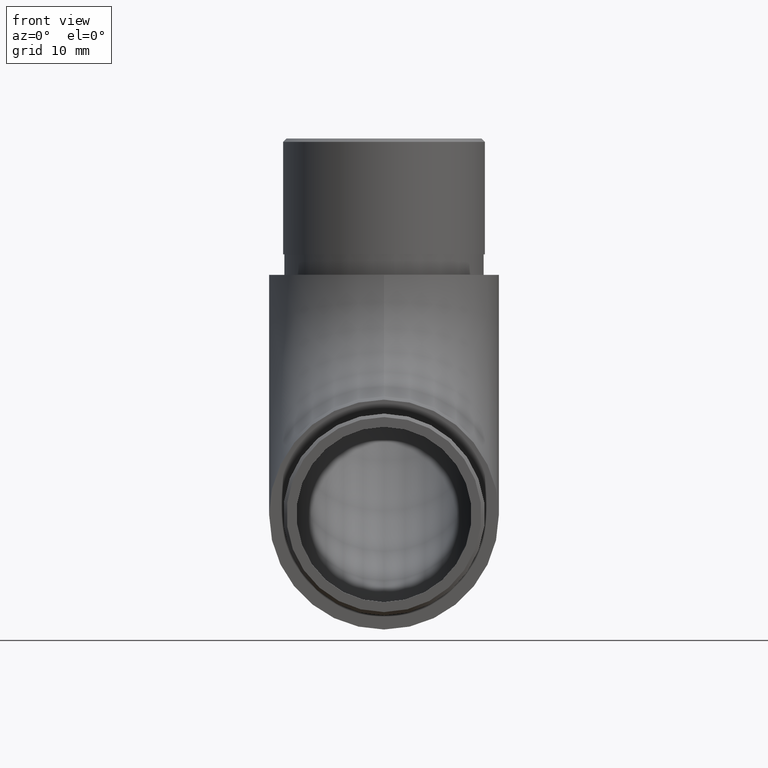
[diagram: clean part render]
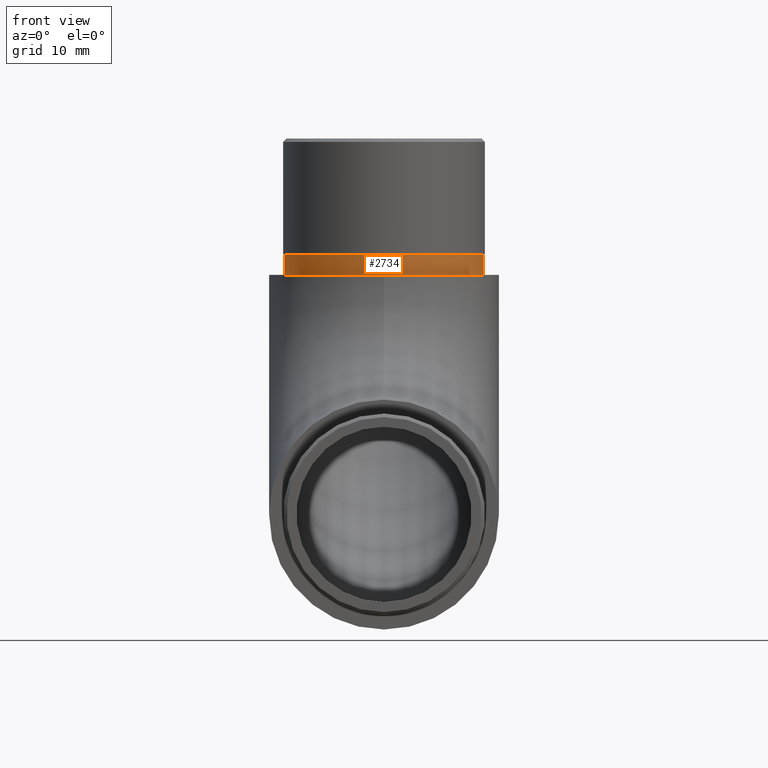
[diagram: same view with one face highlighted and labeled with its STEP entity id]
A machine part, front view. The second image highlights one B-rep face of the part: STEP entity #2734.
In plain terms, the highlighted cylindrical surface (bore or boss wall) has radius 14.6 mm, axis along (-0, -0, -1).
Its self-contained STEP definition (entity closure, byte-faithful):
#990 = DIRECTION ( 'NONE',  ( 0.0000000000000000000, 0.0000000000000000000, 1.000000000000000000 ) ) ;
#1121 = AXIS2_PLACEMENT_3D ( 'NONE', #9935, #990, #3982 ) ;
#1857 = AXIS2_PLACEMENT_3D ( 'NONE', #8120, #6218, #7238 ) ;
#2281 = DIRECTION ( 'NONE',  ( -0.0000000000000000000, -0.0000000000000000000, -1.000000000000000000 ) ) ;
#2721 = EDGE_CURVE ( 'NONE', #7148, #7148, #11709, .T. ) ;
#2734 = ADVANCED_FACE ( 'NONE', ( #5314, #5486 ), #8350, .T. ) ;
#3317 = DIRECTION ( 'NONE',  ( -1.000000000000000000, 0.0000000000000000000, 0.0000000000000000000 ) ) ;
#3982 = DIRECTION ( 'NONE',  ( 1.000000000000000000, 0.0000000000000000000, 0.0000000000000000000 ) ) ;
#5314 = FACE_OUTER_BOUND ( 'NONE', #7935, .T. ) ;
#5486 = FACE_OUTER_BOUND ( 'NONE', #10710, .T. ) ;
#5571 = CIRCLE ( 'NONE', #1121, 14.60000000000000100 ) ;
#5846 = ORIENTED_EDGE ( 'NONE', *, *, #7790, .T. ) ;
#6218 = DIRECTION ( 'NONE',  ( 0.0000000000000000000, 0.0000000000000000000, 1.000000000000000000 ) ) ;
#6309 = CARTESIAN_POINT ( 'NONE',  ( 0.0000000000000000000, 35.14999999999999900, 55.00000000000000000 ) ) ;
#7092 = AXIS2_PLACEMENT_3D ( 'NONE', #6309, #2281, #3317 ) ;
#7122 = CARTESIAN_POINT ( 'NONE',  ( 14.60000000000000100, 35.14999999999999900, 55.00000000000000000 ) ) ;
#7148 = VERTEX_POINT ( 'NONE', #7122 ) ;
#7238 = DIRECTION ( 'NONE',  ( 1.000000000000000000, 0.0000000000000000000, 0.0000000000000000000 ) ) ;
#7691 = ORIENTED_EDGE ( 'NONE', *, *, #2721, .F. ) ;
#7790 = EDGE_CURVE ( 'NONE', #11725, #11725, #5571, .T. ) ;
#7935 = EDGE_LOOP ( 'NONE', ( #7691 ) ) ;
#8120 = CARTESIAN_POINT ( 'NONE',  ( 0.0000000000000000000, 35.14999999999999900, 55.00000000000000000 ) ) ;
#8350 = CYLINDRICAL_SURFACE ( 'NONE', #7092, 14.60000000000000100 ) ;
#9935 = CARTESIAN_POINT ( 'NONE',  ( 0.0000000000000000000, 35.14999999999999900, 52.00000000000000000 ) ) ;
#10710 = EDGE_LOOP ( 'NONE', ( #5846 ) ) ;
#11709 = CIRCLE ( 'NONE', #1857, 14.60000000000000100 ) ;
#11725 = VERTEX_POINT ( 'NONE', #12022 ) ;
#12022 = CARTESIAN_POINT ( 'NONE',  ( 14.60000000000000100, 35.14999999999999900, 52.00000000000000000 ) ) ;